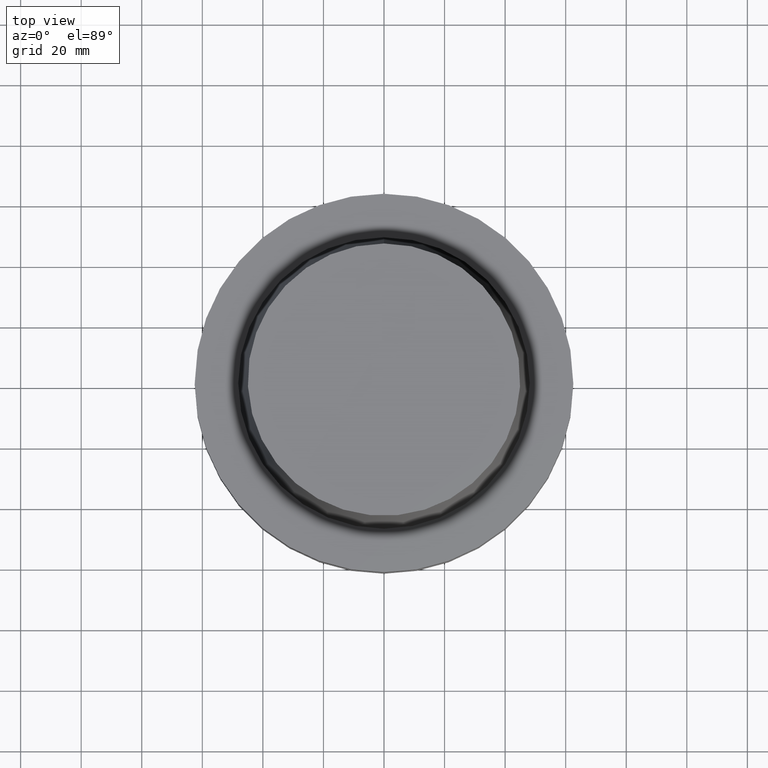
[diagram: clean part render]
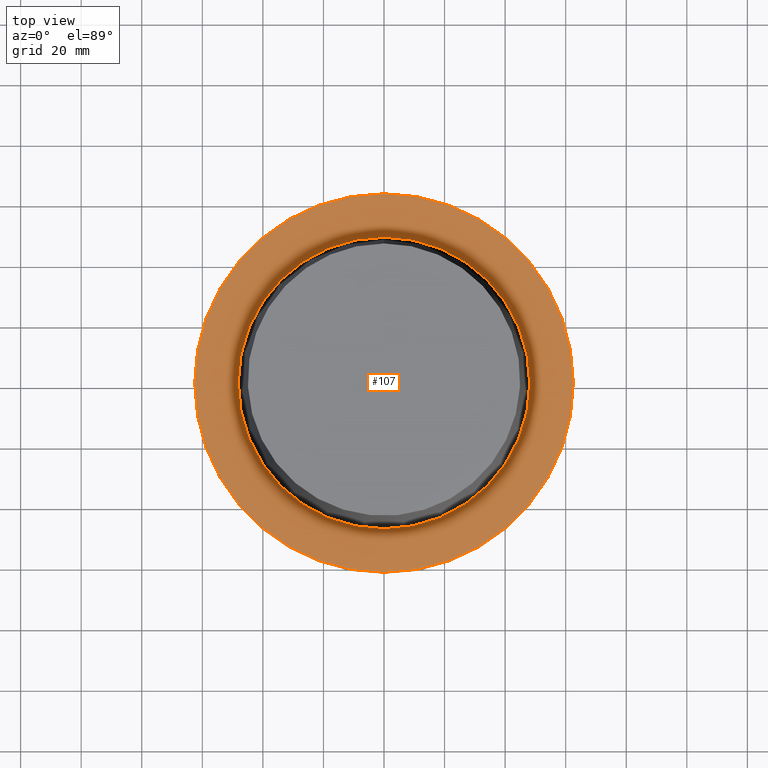
[diagram: same view with one face highlighted and labeled with its STEP entity id]
A machine part, top view. The second image highlights one B-rep face of the part: STEP entity #107.
In plain terms, the highlighted planar face has unit normal (-0, -0, 1).
Its self-contained STEP definition (entity closure, byte-faithful):
#85=EDGE_CURVE('Unnamed[1]',#200,#200,#201,.T.);
#107=ADVANCED_FACE('Unnamed[1]',(#234,#235),#236,.T.);
#137=EDGE_CURVE('Unnamed[1]',#283,#283,#284,.T.);
#200=VERTEX_POINT('',#350);
#201=CIRCLE('',#351,62.5000000000002);
#234=FACE_OUTER_BOUND('',#393,.T.);
#235=FACE_BOUND('',#394,.T.);
#236=PLANE('',#395);
#283=VERTEX_POINT('',#454);
#284=CIRCLE('',#455,48.1342525050097);
#350=CARTESIAN_POINT('',(-5.58935713239973E-030,62.5000000000002,8.63540424946709E-014));
#351=AXIS2_PLACEMENT_3D('',#511,#512,#513);
#393=EDGE_LOOP('',(#548));
#394=EDGE_LOOP('',(#549));
#395=AXIS2_PLACEMENT_3D('',#550,#551,#552);
#454=CARTESIAN_POINT('',(3.88342032297484E-029,48.1342525050097,-6.38005254174039E-013));
#455=AXIS2_PLACEMENT_3D('',#604,#605,#606);
#511=CARTESIAN_POINT('',(-5.22098332203606E-030,-1.04419666440721E-029,8.5265128291212E-014));
#512=DIRECTION('',(6.12323399573677E-017,1.22464679914723E-016,-1.0));
#513=DIRECTION('',(-1.23259516440783E-032,1.0,1.22464679914723E-016));
#548=ORIENTED_EDGE('',*,*,#85,.F.);
#549=ORIENTED_EDGE('',*,*,#137,.T.);
#550=CARTESIAN_POINT('',(1.66224230486744E-029,55.317126252505,-2.75825605839684E-013));
#551=DIRECTION('',(-6.12323399573677E-017,-5.04226666187264E-014,1.0));
#552=DIRECTION('',(3.09232501668564E-030,-1.0,-5.04226666187264E-014));
#604=CARTESIAN_POINT('',(3.91573749152705E-029,7.83147498305409E-029,-6.3948846218409E-013));
#605=DIRECTION('',(6.12323399573677E-017,1.22464679914742E-016,-1.0));
#606=DIRECTION('',(-1.23259516440755E-032,1.0,1.22464679914742E-016));